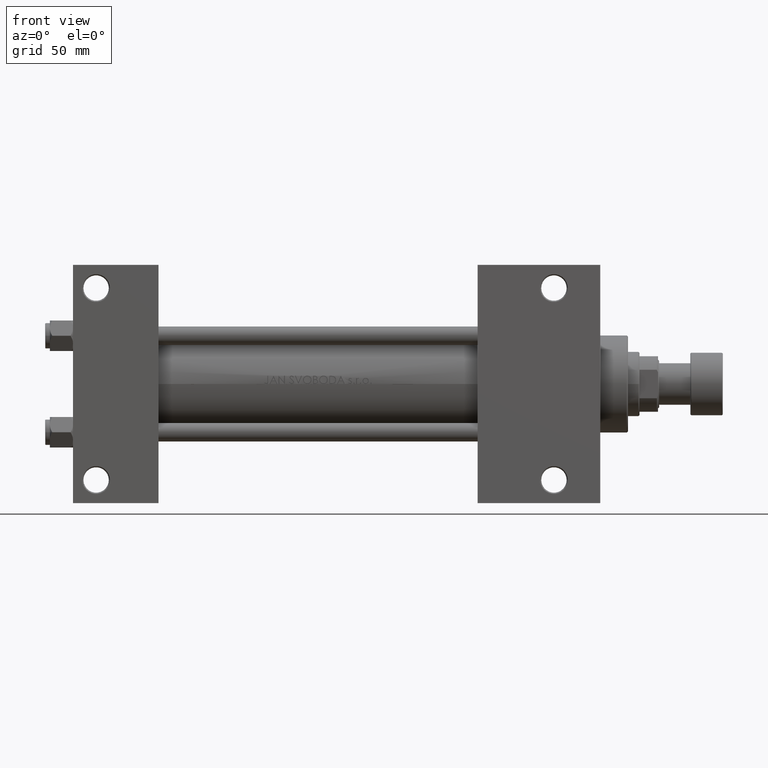
[diagram: clean part render]
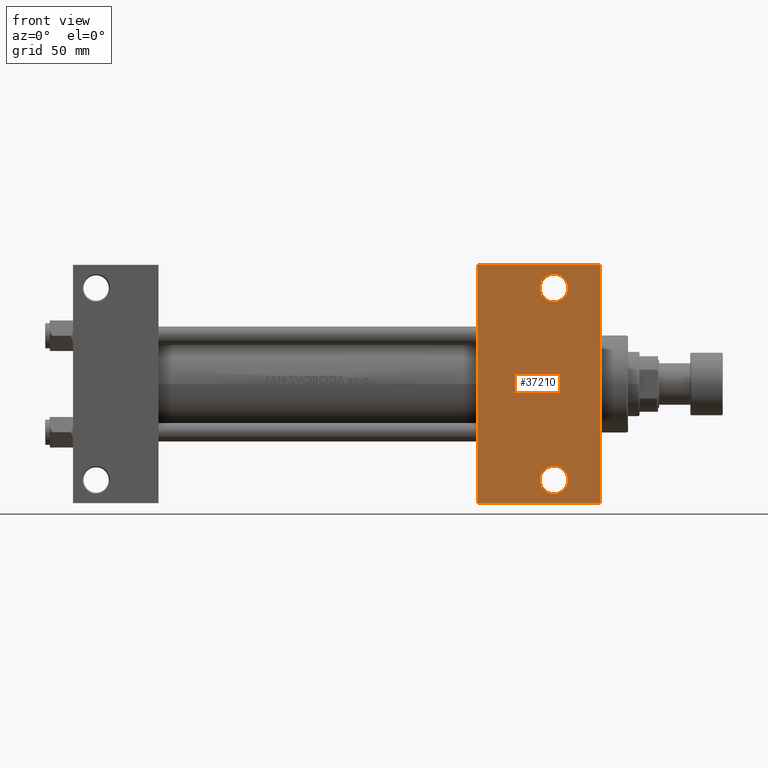
[diagram: same view with one face highlighted and labeled with its STEP entity id]
A machine part, front view. The second image highlights one B-rep face of the part: STEP entity #37210.
In plain terms, the highlighted planar face has unit normal (0, -1, -0).
Its self-contained STEP definition (entity closure, byte-faithful):
#595 = VERTEX_POINT ( 'NONE', #41412 ) ;
#636 = AXIS2_PLACEMENT_3D ( 'NONE', #29002, #26745, #33384 ) ;
#1191 = CARTESIAN_POINT ( 'NONE',  ( 228.0000000000000000, 30.00000000000000000, -29.99999999999999289 ) ) ;
#1766 = VERTEX_POINT ( 'NONE', #20013 ) ;
#2676 = AXIS2_PLACEMENT_3D ( 'NONE', #40008, #33195, #25893 ) ;
#2806 = ORIENTED_EDGE ( 'NONE', *, *, #38703, .T. ) ;
#3581 = VERTEX_POINT ( 'NONE', #16812 ) ;
#3932 = EDGE_LOOP ( 'NONE', ( #2806, #18385 ) ) ;
#5136 = LINE ( 'NONE', #45983, #34618 ) ;
#5156 = CARTESIAN_POINT ( 'NONE',  ( 208.0000000000000284, 41.49999999999999289, -29.99999999999999289 ) ) ;
#5509 = CIRCLE ( 'NONE', #45111, 5.999499999999935440 ) ;
#6409 = VERTEX_POINT ( 'NONE', #9619 ) ;
#6874 = FACE_BOUND ( 'NONE', #3932, .T. ) ;
#6950 = DIRECTION ( 'NONE',  ( -0.000000000000000000, -1.156482317317871478E-16, 1.000000000000000000 ) ) ;
#7964 = CARTESIAN_POINT ( 'NONE',  ( 208.0000000000000000, -41.49999999999999289, -30.00000000000000000 ) ) ;
#8400 = AXIS2_PLACEMENT_3D ( 'NONE', #44396, #6950, #18384 ) ;
#8846 = ORIENTED_EDGE ( 'NONE', *, *, #28208, .T. ) ;
#8880 = EDGE_LOOP ( 'NONE', ( #15031, #37112 ) ) ;
#9208 = CIRCLE ( 'NONE', #8400, 5.999499999999935440 ) ;
#9619 = CARTESIAN_POINT ( 'NONE',  ( 213.9994999999999266, -41.49999999999999289, -30.00000000000000000 ) ) ;
#10148 = CARTESIAN_POINT ( 'NONE',  ( 175.0000000000000284, 30.00000000000000000, -29.99999999999999289 ) ) ;
#12429 = VECTOR ( 'NONE', #29054, 1000.000000000000000 ) ;
#14973 = EDGE_CURVE ( 'NONE', #30400, #1766, #45921, .T. ) ;
#15031 = ORIENTED_EDGE ( 'NONE', *, *, #25223, .T. ) ;
#16812 = CARTESIAN_POINT ( 'NONE',  ( 202.0005000000000450, -41.49999999999999289, -30.00000000000000000 ) ) ;
#18325 = EDGE_CURVE ( 'NONE', #595, #33955, #5509, .T. ) ;
#18333 = CARTESIAN_POINT ( 'NONE',  ( 175.0000000000000284, 51.49999999999998579, -29.99999999999999645 ) ) ;
#18384 = DIRECTION ( 'NONE',  ( 0.000000000000000000, 1.000000000000000000, 0.000000000000000000 ) ) ;
#18385 = ORIENTED_EDGE ( 'NONE', *, *, #47973, .T. ) ;
#18507 = VECTOR ( 'NONE', #45685, 1000.000000000000000 ) ;
#19463 = ORIENTED_EDGE ( 'NONE', *, *, #14973, .T. ) ;
#20013 = CARTESIAN_POINT ( 'NONE',  ( 228.0000000000000284, -51.50000000000000711, -29.99999999999999645 ) ) ;
#22023 = EDGE_LOOP ( 'NONE', ( #44886, #31900, #19463, #8846 ) ) ;
#22154 = VERTEX_POINT ( 'NONE', #18333 ) ;
#24301 = LINE ( 'NONE', #43647, #12429 ) ;
#24526 = DIRECTION ( 'NONE',  ( 0.000000000000000000, -1.000000000000000000, -1.156482317317871478E-16 ) ) ;
#24573 = AXIS2_PLACEMENT_3D ( 'NONE', #7964, #38355, #26214 ) ;
#25124 = PLANE ( 'NONE',  #636 ) ;
#25223 = EDGE_CURVE ( 'NONE', #33955, #595, #33754, .T. ) ;
#25722 = CARTESIAN_POINT ( 'NONE',  ( 175.0000000000000284, -51.50000000000001421, -29.99999999999999645 ) ) ;
#25843 = FACE_BOUND ( 'NONE', #8880, .T. ) ;
#25893 = DIRECTION ( 'NONE',  ( 0.000000000000000000, 1.000000000000000000, 0.000000000000000000 ) ) ;
#26214 = DIRECTION ( 'NONE',  ( 0.000000000000000000, 1.000000000000000000, 0.000000000000000000 ) ) ;
#26745 = DIRECTION ( 'NONE',  ( 0.000000000000000000, 1.156482317317871478E-16, -1.000000000000000000 ) ) ;
#28208 = EDGE_CURVE ( 'NONE', #1766, #42621, #5136, .T. ) ;
#29002 = CARTESIAN_POINT ( 'NONE',  ( 228.0000000000000000, 30.00000000000000000, -29.99999999999999289 ) ) ;
#29054 = DIRECTION ( 'NONE',  ( 1.000000000000000000, -3.927675794664467405E-16, 0.000000000000000000 ) ) ;
#29382 = CARTESIAN_POINT ( 'NONE',  ( 228.0000000000000284, 51.49999999999996447, -29.99999999999999645 ) ) ;
#30400 = VERTEX_POINT ( 'NONE', #29382 ) ;
#31900 = ORIENTED_EDGE ( 'NONE', *, *, #46502, .T. ) ;
#33195 = DIRECTION ( 'NONE',  ( -0.000000000000000000, -1.156482317317871478E-16, 1.000000000000000000 ) ) ;
#33311 = EDGE_CURVE ( 'NONE', #22154, #42621, #39593, .T. ) ;
#33384 = DIRECTION ( 'NONE',  ( 0.000000000000000000, 1.000000000000000000, 1.156482317317871478E-16 ) ) ;
#33754 = CIRCLE ( 'NONE', #2676, 5.999499999999935440 ) ;
#33955 = VERTEX_POINT ( 'NONE', #43689 ) ;
#34618 = VECTOR ( 'NONE', #42344, 1000.000000000000000 ) ;
#37112 = ORIENTED_EDGE ( 'NONE', *, *, #18325, .T. ) ;
#37210 = ADVANCED_FACE ( 'NONE', ( #25843, #6874, #40667 ), #25124, .T. ) ;
#37405 = CIRCLE ( 'NONE', #24573, 5.999499999999935440 ) ;
#38355 = DIRECTION ( 'NONE',  ( -0.000000000000000000, -1.156482317317871478E-16, 1.000000000000000000 ) ) ;
#38703 = EDGE_CURVE ( 'NONE', #3581, #6409, #9208, .T. ) ;
#39186 = DIRECTION ( 'NONE',  ( 0.000000000000000000, 1.000000000000000000, 0.000000000000000000 ) ) ;
#39593 = LINE ( 'NONE', #10148, #43224 ) ;
#40008 = CARTESIAN_POINT ( 'NONE',  ( 208.0000000000000284, 41.49999999999999289, -29.99999999999999289 ) ) ;
#40667 = FACE_OUTER_BOUND ( 'NONE', #22023, .T. ) ;
#41412 = CARTESIAN_POINT ( 'NONE',  ( 213.9994999999999550, 41.49999999999999289, -29.99999999999999289 ) ) ;
#42344 = DIRECTION ( 'NONE',  ( -1.000000000000000000, -1.309225264888155637E-16, -0.000000000000000000 ) ) ;
#42621 = VERTEX_POINT ( 'NONE', #25722 ) ;
#43224 = VECTOR ( 'NONE', #24526, 1000.000000000000000 ) ;
#43647 = CARTESIAN_POINT ( 'NONE',  ( 175.0000000000000284, 51.49999999999998579, -29.99999999999999645 ) ) ;
#43689 = CARTESIAN_POINT ( 'NONE',  ( 202.0005000000000734, 41.49999999999999289, -29.99999999999999289 ) ) ;
#44396 = CARTESIAN_POINT ( 'NONE',  ( 208.0000000000000000, -41.49999999999999289, -30.00000000000000000 ) ) ;
#44886 = ORIENTED_EDGE ( 'NONE', *, *, #33311, .F. ) ;
#45111 = AXIS2_PLACEMENT_3D ( 'NONE', #5156, #46719, #39186 ) ;
#45685 = DIRECTION ( 'NONE',  ( 0.000000000000000000, -1.000000000000000000, -1.156482317317871478E-16 ) ) ;
#45921 = LINE ( 'NONE', #1191, #18507 ) ;
#45983 = CARTESIAN_POINT ( 'NONE',  ( 175.0000000000000284, -51.50000000000001421, -29.99999999999999645 ) ) ;
#46502 = EDGE_CURVE ( 'NONE', #22154, #30400, #24301, .T. ) ;
#46719 = DIRECTION ( 'NONE',  ( -0.000000000000000000, -1.156482317317871478E-16, 1.000000000000000000 ) ) ;
#47973 = EDGE_CURVE ( 'NONE', #6409, #3581, #37405, .T. ) ;